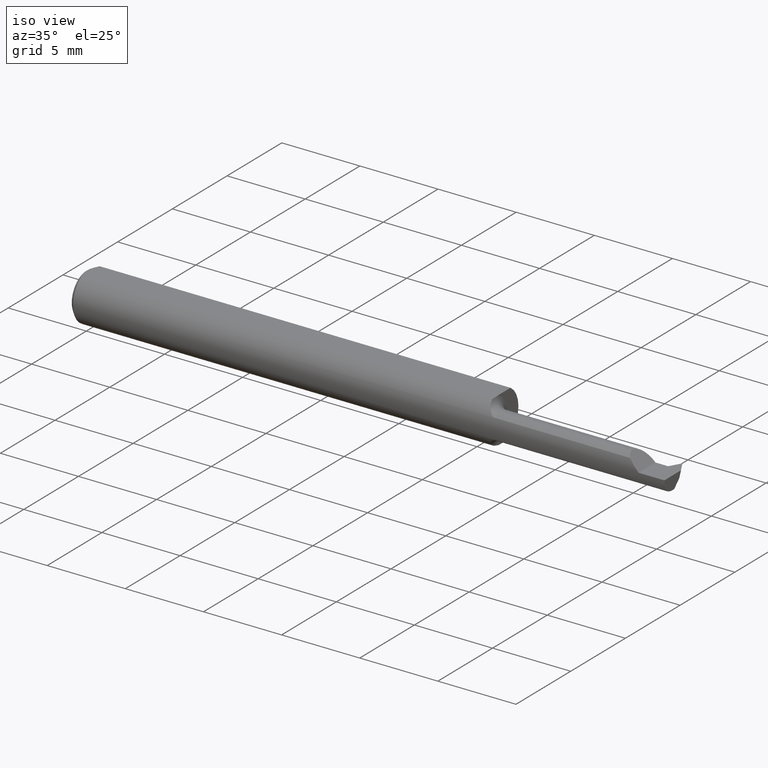
[diagram: clean part render]
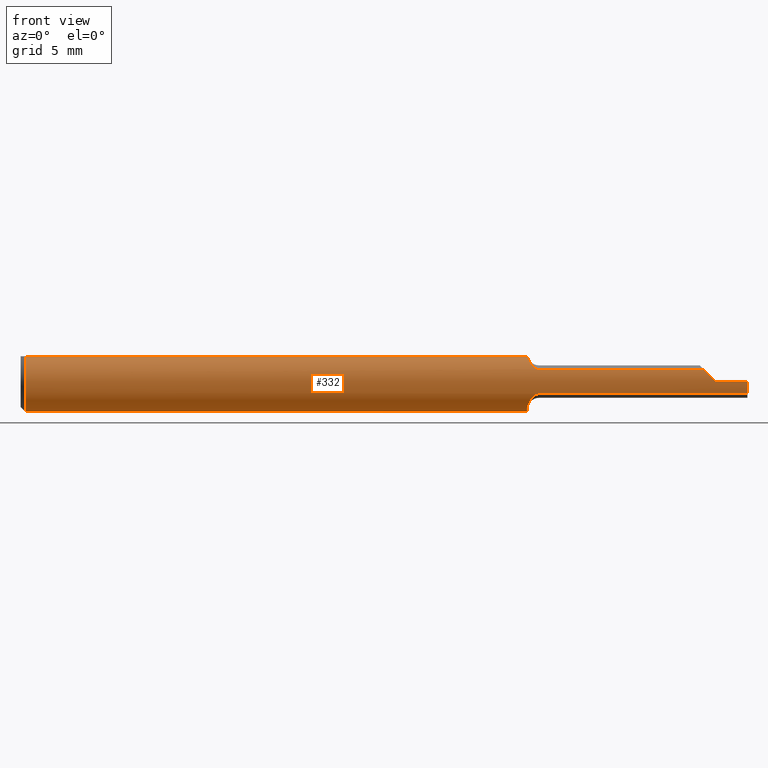
[diagram: tour spotlight — one face highlighted and labeled with its STEP entity id]
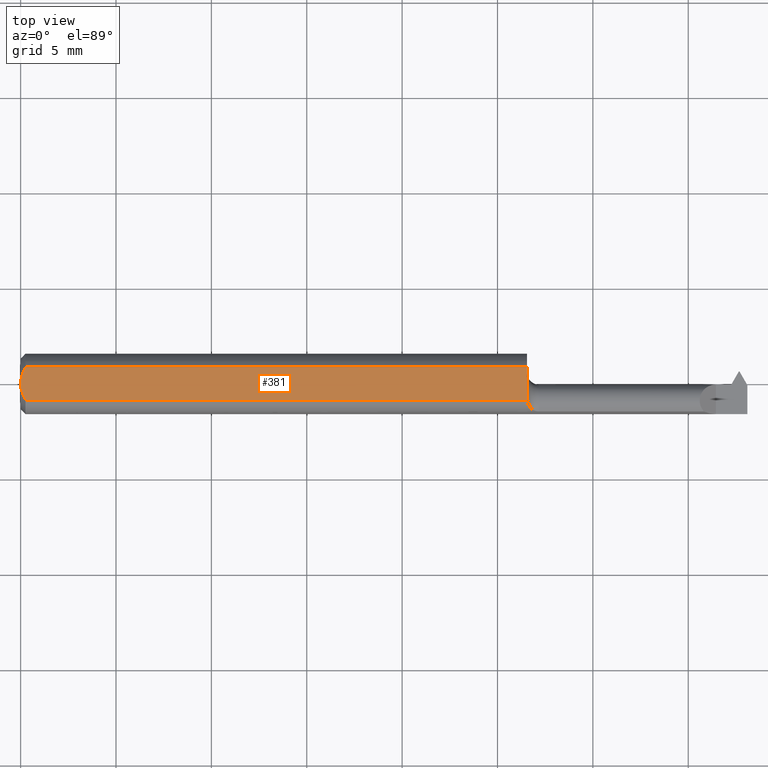
[diagram: tour spotlight — one face highlighted and labeled with its STEP entity id]
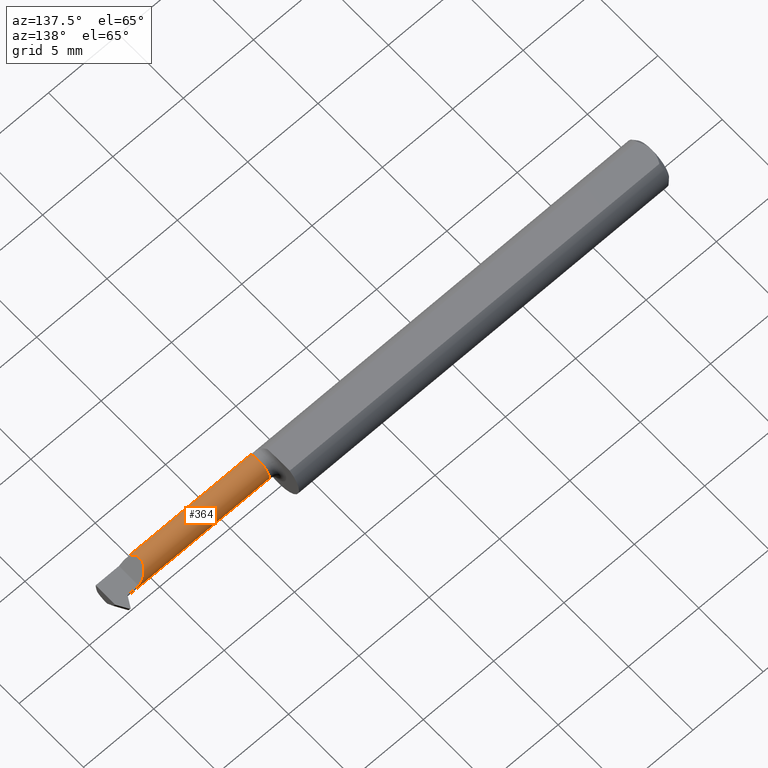
[diagram: tour spotlight — one face highlighted and labeled with its STEP entity id]
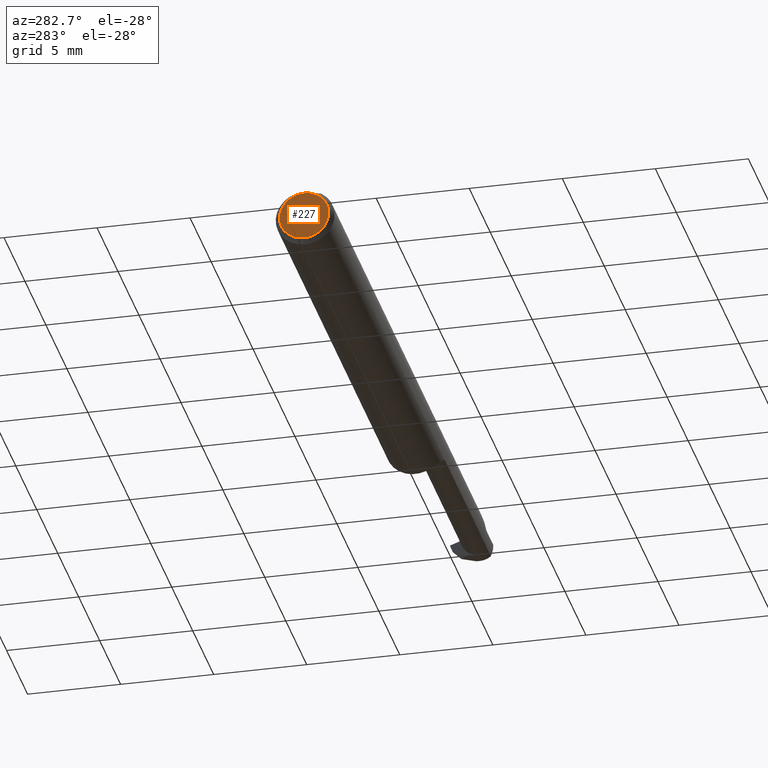
[diagram: tour spotlight — one face highlighted and labeled with its STEP entity id]
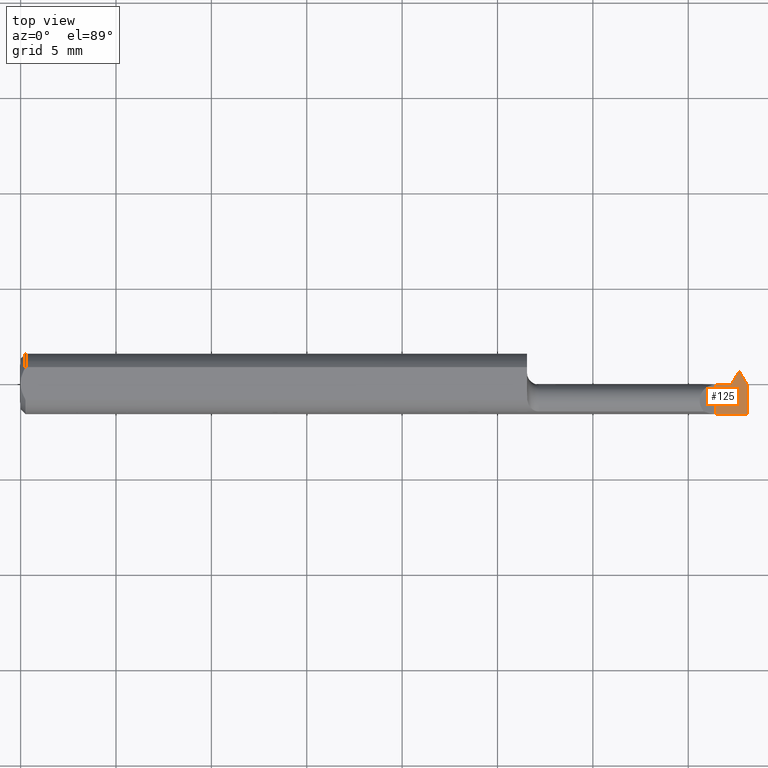
[diagram: tour spotlight — one face highlighted and labeled with its STEP entity id]
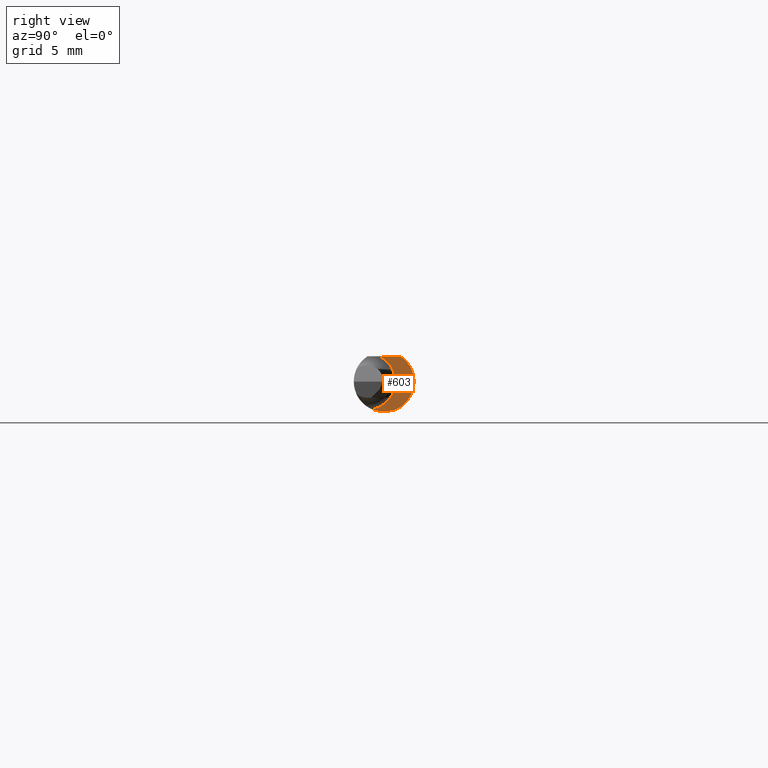
[diagram: tour spotlight — one face highlighted and labeled with its STEP entity id]
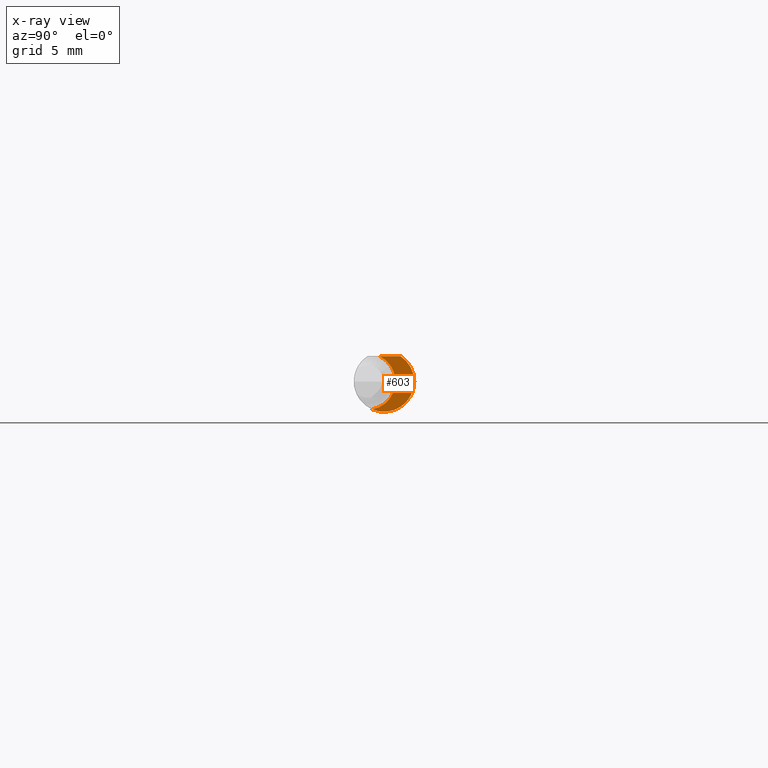
[diagram: x-ray of the same camera — body ghosted, this tour face saturated]
A machine part: a face-by-face anatomy tour. The part has 23 B-rep faces; the first image is the clean iso view, then the 6 largest visible faces are spotlighted one at a time (largest first), each with its STEP entity span.

Face 1 — front view, entity #332. In plain terms, the highlighted cylindrical surface (edge-blend (fillet) strip) has radius 1.5837 mm, axis along (-1, -0, -0).
Definition (entity closure, byte-faithful):
#3 = CARTESIAN_POINT ( 'NONE',  ( 1.070000000000000284, -0.05709892395982781726, 0.02504466774844100324 ) ) ;
#6 = AXIS2_PLACEMENT_3D ( 'NONE', #707, #776, #106 ) ;
#17 = DIRECTION ( 'NONE',  ( 0.000000000000000000, 0.000000000000000000, -1.000000000000000000 ) ) ;
#25 = CARTESIAN_POINT ( 'NONE',  ( 1.045000000000000151, -0.02410035868005742932, -0.05750387127396364845 ) ) ;
#30 = CARTESIAN_POINT ( 'NONE',  ( 1.417879128153533452, -0.06057445067572577585, 0.01712087184646659752 ) ) ;
#36 = CARTESIAN_POINT ( 'NONE',  ( 1.054690406761187527, -0.05189775877450879260, 0.03472056671776155984 ) ) ;
#51 = CARTESIAN_POINT ( 'NONE',  ( 1.267830771365940024, -0.05709892395982781726, -0.02504466774844102059 ) ) ;
#53 = FACE_OUTER_BOUND ( 'NONE', #342, .T. ) ;
#73 = CARTESIAN_POINT ( 'NONE',  ( 1.061164853340209158, -0.05561071833010011040, -0.02822547837609013996 ) ) ;
#89 = CARTESIAN_POINT ( 'NONE',  ( 1.046314111219817100, -0.03711772912555125897, 0.05024721966676181512 ) ) ;
#91 = ORIENTED_EDGE ( 'NONE', *, *, #340, .F. ) ;
#106 = DIRECTION ( 'NONE',  ( 0.000000000000000000, 1.000000000000000000, 0.000000000000000000 ) ) ;
#109 = CARTESIAN_POINT ( 'NONE',  ( 0.000000000000000000, 0.000000000000000000, 0.000000000000000000 ) ) ;
#112 = LINE ( 'NONE', #539, #598 ) ;
#115 = CARTESIAN_POINT ( 'NONE',  ( 1.500000000000000222, -0.05709892395982779645, -0.02504466774844105528 ) ) ;
#117 = VERTEX_POINT ( 'NONE', #133 ) ;
#122 = CARTESIAN_POINT ( 'NONE',  ( 1.067550192911579154, -0.05709892395982780339, -0.02504466774844099977 ) ) ;
#133 = CARTESIAN_POINT ( 'NONE',  ( 1.500000000000000222, -0.06235000000000000264, 0.000000000000000000 ) ) ;
#145 = AXIS2_PLACEMENT_3D ( 'NONE', #109, #546, #242 ) ;
#152 = CARTESIAN_POINT ( 'NONE',  ( 1.409955332251558779, -0.05709892395982780339, 0.02504466774844103447 ) ) ;
#154 = VERTEX_POINT ( 'NONE', #461 ) ;
#156 = CARTESIAN_POINT ( 'NONE',  ( 1.070000000000000284, -0.05709892395982781726, 0.02504466774844100324 ) ) ;
#165 = B_SPLINE_CURVE_WITH_KNOTS ( 'NONE', 3,
 ( #426, #122, #552, #73, #556, #691, #311, #747, #752, #564 ),
 .UNSPECIFIED., .F., .F.,
 ( 4, 2, 2, 2, 4 ),
 ( 1.966152330163128906E-07, 0.0001837255154448747777, 0.0003672544156567332800, 0.0007343122160804505015, 0.001468427816927889065 ),
 .UNSPECIFIED. ) ;
#177 = VERTEX_POINT ( 'NONE', #529 ) ;
#192 = CARTESIAN_POINT ( 'NONE',  ( 0.000000000000000000, -0.03386738844375224849, 0.05234999999999997294 ) ) ;
#194 = VECTOR ( 'NONE', #510, 39.37007874015748143 ) ;
#195 = EDGE_CURVE ( 'NONE', #623, #573, #238, .T. ) ;
#200 = LINE ( 'NONE', #192, #194 ) ;
#207 = CARTESIAN_POINT ( 'NONE',  ( 1.426347495885637029, -0.06235000000000000264, 0.008652504114362861293 ) ) ;
#211 = CIRCLE ( 'NONE', #714, 0.06235000000000000264 ) ;
#215 = CARTESIAN_POINT ( 'NONE',  ( 1.045765915872935548, -0.03386738844375226931, 0.05234999999999997294 ) ) ;
#220 = CARTESIAN_POINT ( 'NONE',  ( 1.062667698010507200, -0.05609078834387073997, 0.02724295609707795551 ) ) ;
#238 = CIRCLE ( 'NONE', #6, 0.06235000000000000264 ) ;
#242 = DIRECTION ( 'NONE',  ( 0.000000000000000000, 0.000000000000000000, 1.000000000000000000 ) ) ;
#256 = VERTEX_POINT ( 'NONE', #588 ) ;
#261 = CARTESIAN_POINT ( 'NONE',  ( 0.01000000000000001582, 0.03386738844375224849, 0.05234999999999997294 ) ) ;
#267 = EDGE_CURVE ( 'NONE', #296, #474, #406, .T. ) ;
#272 = CIRCLE ( 'NONE', #793, 0.06235000000000000264 ) ;
#282 = EDGE_CURVE ( 'NONE', #431, #117, #211, .T. ) ;
#296 = VERTEX_POINT ( 'NONE', #3 ) ;
#299 = DIRECTION ( 'NONE',  ( 0.000000000000000000, 0.000000000000000000, -1.000000000000000000 ) ) ;
#311 = CARTESIAN_POINT ( 'NONE',  ( 1.052310961729282068, -0.04965751065928977748, -0.03796109892517811335 ) ) ;
#312 = DIRECTION ( 'NONE',  ( -1.000000000000000000, -0.000000000000000000, -0.000000000000000000 ) ) ;
#315 = CARTESIAN_POINT ( 'NONE',  ( 1.045765915872935548, -0.03386738844375226931, 0.05234999999999997294 ) ) ;
#327 = CARTESIAN_POINT ( 'NONE',  ( 1.056913828280231060, -0.05360430345633773047, 0.03196179114852444603 ) ) ;
#332 = ADVANCED_FACE ( 'NONE', ( #53 ), #535, .T. ) ;
#340 = EDGE_CURVE ( 'NONE', #573, #654, #112, .T. ) ;
#342 = EDGE_LOOP ( 'NONE', ( #365, #555, #525, #562, #360, #780, #721, #593, #602, #91, #422, #345 ) ) ;
#345 = ORIENTED_EDGE ( 'NONE', *, *, #466, .F. ) ;
#348 = CIRCLE ( 'NONE', #754, 0.06235000000000000264 ) ;
#353 = DIRECTION ( 'NONE',  ( -1.000000000000000000, -0.000000000000000000, -0.000000000000000000 ) ) ;
#357 = DIRECTION ( 'NONE',  ( 1.000000000000000000, 3.044142658522791803E-17, 0.000000000000000000 ) ) ;
#360 = ORIENTED_EDGE ( 'NONE', *, *, #267, .F. ) ;
#365 = ORIENTED_EDGE ( 'NONE', *, *, #368, .F. ) ;
#368 = EDGE_CURVE ( 'NONE', #431, #256, #794, .T. ) ;
#380 = EDGE_CURVE ( 'NONE', #154, #654, #348, .T. ) ;
#384 = CARTESIAN_POINT ( 'NONE',  ( 0.01000000000000001582, 0.000000000000000000, 0.000000000000000000 ) ) ;
#392 = CARTESIAN_POINT ( 'NONE',  ( 1.050984889049478399, -0.04785008456019034656, 0.04011563942656617976 ) ) ;
#398 = CARTESIAN_POINT ( 'NONE',  ( 1.047148210568723536, -0.04007261119486314749, 0.04790923348985386826 ) ) ;
#406 = LINE ( 'NONE', #655, #554 ) ;
#411 = CARTESIAN_POINT ( 'NONE',  ( 0.01000000000000001582, 0.000000000000000000, 0.000000000000000000 ) ) ;
#422 = ORIENTED_EDGE ( 'NONE', *, *, #195, .F. ) ;
#423 =( BOUNDED_CURVE ( )  B_SPLINE_CURVE ( 3, ( #760, #207, #30, #152 ),
 .UNSPECIFIED., .F., .F. ) 
 B_SPLINE_CURVE_WITH_KNOTS ( ( 4, 4 ),
 ( 4.712388980384689674, 5.125738186074483060 ),
 .UNSPECIFIED. ) 
 CURVE ( )  GEOMETRIC_REPRESENTATION_ITEM ( )  RATIONAL_B_SPLINE_CURVE ( ( 1.000000000000000000, 0.9858124784975270671, 0.9858124784975270671, 1.000000000000000000 ) ) 
 REPRESENTATION_ITEM ( '' )  );
#426 = CARTESIAN_POINT ( 'NONE',  ( 1.070000000000000284, -0.05709892395982781033, -0.02504466774844100671 ) ) ;
#431 = VERTEX_POINT ( 'NONE', #115 ) ;
#454 = DIRECTION ( 'NONE',  ( 1.000000000000000000, 0.000000000000000000, 0.000000000000000000 ) ) ;
#461 = CARTESIAN_POINT ( 'NONE',  ( 0.01000000000000001582, 0.000000000000000000, -0.06235000000000000264 ) ) ;
#466 = EDGE_CURVE ( 'NONE', #256, #623, #165, .T. ) ;
#474 = VERTEX_POINT ( 'NONE', #575 ) ;
#477 = DIRECTION ( 'NONE',  ( 1.000000000000000000, 0.000000000000000000, 0.000000000000000000 ) ) ;
#495 = CARTESIAN_POINT ( 'NONE',  ( 1.045000000000000151, 0.03386738844375224849, 0.05234999999999997294 ) ) ;
#510 = DIRECTION ( 'NONE',  ( 1.000000000000000000, 0.000000000000000000, 0.000000000000000000 ) ) ;
#515 = CARTESIAN_POINT ( 'NONE',  ( 0.01000000000000001582, -0.03386738844375224849, 0.05234999999999997294 ) ) ;
#525 = ORIENTED_EDGE ( 'NONE', *, *, #634, .T. ) ;
#529 = CARTESIAN_POINT ( 'NONE',  ( 1.435000000000000053, -0.06235000000000005121, 7.960204194457796709E-18 ) ) ;
#535 = CYLINDRICAL_SURFACE ( 'NONE', #145, 0.06235000000000000264 ) ;
#539 = CARTESIAN_POINT ( 'NONE',  ( 0.000000000000000000, 0.03386738844375224849, 0.05234999999999997294 ) ) ;
#540 = VECTOR ( 'NONE', #312, 39.37007874015748143 ) ;
#544 = CARTESIAN_POINT ( 'NONE',  ( 1.500000000000000222, 0.000000000000000000, 0.000000000000000000 ) ) ;
#546 = DIRECTION ( 'NONE',  ( -1.000000000000000000, -0.000000000000000000, -0.000000000000000000 ) ) ;
#552 = CARTESIAN_POINT ( 'NONE',  ( 1.065216574638838010, -0.05674433226992104534, -0.02587103357018544214 ) ) ;
#554 = VECTOR ( 'NONE', #357, 39.37007874015748143 ) ;
#555 = ORIENTED_EDGE ( 'NONE', *, *, #282, .T. ) ;
#556 = CARTESIAN_POINT ( 'NONE',  ( 1.059395777442046827, -0.05483337303378379990, -0.02973462129328996797 ) ) ;
#562 = ORIENTED_EDGE ( 'NONE', *, *, #652, .T. ) ;
#564 = CARTESIAN_POINT ( 'NONE',  ( 1.045000000000000151, -0.02410035868005742932, -0.05750387127396364845 ) ) ;
#573 = VERTEX_POINT ( 'NONE', #495 ) ;
#575 = CARTESIAN_POINT ( 'NONE',  ( 1.409955332251558779, -0.05709892395982780339, 0.02504466774844103447 ) ) ;
#579 = EDGE_CURVE ( 'NONE', #680, #796, #200, .T. ) ;
#588 = CARTESIAN_POINT ( 'NONE',  ( 1.070000000000000284, -0.05709892395982781033, -0.02504466774844100671 ) ) ;
#593 = ORIENTED_EDGE ( 'NONE', *, *, #724, .T. ) ;
#598 = VECTOR ( 'NONE', #661, 39.37007874015748143 ) ;
#602 = ORIENTED_EDGE ( 'NONE', *, *, #380, .T. ) ;
#604 = DIRECTION ( 'NONE',  ( 0.000000000000000000, 0.000000000000000000, 1.000000000000000000 ) ) ;
#621 = CARTESIAN_POINT ( 'NONE',  ( 2.249639673992787780E-32, -0.06234999999999999570, 1.836970198721030181E-16 ) ) ;
#623 = VERTEX_POINT ( 'NONE', #25 ) ;
#634 = EDGE_CURVE ( 'NONE', #117, #177, #757, .T. ) ;
#640 = CARTESIAN_POINT ( 'NONE',  ( 1.068016429056366512, -0.05709892396012065940, 0.02504466774777359267 ) ) ;
#648 = CARTESIAN_POINT ( 'NONE',  ( 1.061108857476140033, -0.05554585026235775436, 0.02835568292702031132 ) ) ;
#652 = EDGE_CURVE ( 'NONE', #177, #474, #423, .T. ) ;
#654 = VERTEX_POINT ( 'NONE', #261 ) ;
#655 = CARTESIAN_POINT ( 'NONE',  ( 1.267830771365940024, -0.05709892395982781726, 0.02504466774844102059 ) ) ;
#661 = DIRECTION ( 'NONE',  ( -1.000000000000000000, -0.000000000000000000, -0.000000000000000000 ) ) ;
#671 = VECTOR ( 'NONE', #734, 39.37007874015748143 ) ;
#680 = VERTEX_POINT ( 'NONE', #515 ) ;
#687 = EDGE_CURVE ( 'NONE', #796, #296, #693, .T. ) ;
#691 = CARTESIAN_POINT ( 'NONE',  ( 1.054708702735070336, -0.05208664496938542748, -0.03446447334144320251 ) ) ;
#693 = B_SPLINE_CURVE_WITH_KNOTS ( 'NONE', 3,
 ( #215, #89, #398, #706, #392, #36, #327, #648, #220, #710, #640, #156 ),
 .UNSPECIFIED., .F., .F.,
 ( 4, 2, 2, 2, 2, 4 ),
 ( 3.666883588906561326E-07, 0.0002941012593274378419, 0.0005878358302959850543, 0.0008815704012645323752, 0.001028437686748805710, 0.001175304972233079046 ),
 .UNSPECIFIED. ) ;
#706 = CARTESIAN_POINT ( 'NONE',  ( 1.049475650765491430, -0.04543829082259429053, 0.04285406105238277058 ) ) ;
#707 = CARTESIAN_POINT ( 'NONE',  ( 1.045000000000000151, 0.000000000000000000, 0.000000000000000000 ) ) ;
#710 = CARTESIAN_POINT ( 'NONE',  ( 1.066087384637947277, -0.05686401995909784457, 0.02558981101992647417 ) ) ;
#714 = AXIS2_PLACEMENT_3D ( 'NONE', #544, #353, #604 ) ;
#721 = ORIENTED_EDGE ( 'NONE', *, *, #579, .F. ) ;
#724 = EDGE_CURVE ( 'NONE', #680, #154, #272, .T. ) ;
#734 = DIRECTION ( 'NONE',  ( -1.000000000000000000, -3.044142658522791803E-17, -0.000000000000000000 ) ) ;
#747 = CARTESIAN_POINT ( 'NONE',  ( 1.046670310314335550, -0.04091496348352739038, -0.04786493339680070874 ) ) ;
#752 = CARTESIAN_POINT ( 'NONE',  ( 1.044999999999999263, -0.03297194608785028458, -0.05378571397685510957 ) ) ;
#754 = AXIS2_PLACEMENT_3D ( 'NONE', #411, #477, #299 ) ;
#757 = LINE ( 'NONE', #621, #540 ) ;
#760 = CARTESIAN_POINT ( 'NONE',  ( 1.435000000000000053, -0.06235000000000005121, 7.960204194457796709E-18 ) ) ;
#776 = DIRECTION ( 'NONE',  ( 1.000000000000000000, 3.044142658522791803E-17, 0.000000000000000000 ) ) ;
#780 = ORIENTED_EDGE ( 'NONE', *, *, #687, .F. ) ;
#793 = AXIS2_PLACEMENT_3D ( 'NONE', #384, #454, #17 ) ;
#794 = LINE ( 'NONE', #51, #671 ) ;
#796 = VERTEX_POINT ( 'NONE', #315 ) ;

Face 2 — top view, entity #381. In plain terms, the highlighted planar face has unit normal (0, 0, 1).
Definition (entity closure, byte-faithful):
#4 = CARTESIAN_POINT ( 'NONE',  ( 0.01000000000000001582, -0.03386738844375224849, 0.05234999999999997294 ) ) ;
#31 = DIRECTION ( 'NONE',  ( -3.044142658522791803E-17, 1.000000000000000000, 0.000000000000000000 ) ) ;
#38 = ORIENTED_EDGE ( 'NONE', *, *, #526, .F. ) ;
#41 = CARTESIAN_POINT ( 'NONE',  ( 1.045583553616766581, -0.02549123666963590967, 0.05234999999999997988 ) ) ;
#55 = VERTEX_POINT ( 'NONE', #512 ) ;
#61 = B_SPLINE_CURVE_WITH_KNOTS ( 'NONE', 3,
 ( #599, #341, #41, #273, #517, #783 ),
 .UNSPECIFIED., .F., .F.,
 ( 4, 2, 4 ),
 ( 0.007083260706228937387, 0.007400580848369309184, 0.007717900990509680981 ),
 .UNSPECIFIED. ) ;
#107 = VERTEX_POINT ( 'NONE', #387 ) ;
#112 = LINE ( 'NONE', #539, #598 ) ;
#116 = CARTESIAN_POINT ( 'NONE',  ( 0.001055043921633170472, -0.01186408073210962373, 0.05234999999999998682 ) ) ;
#127 = CARTESIAN_POINT ( 'NONE',  ( 0.004671770759546948343, 0.02323517832780106970, 0.05234999999999998682 ) ) ;
#140 = EDGE_CURVE ( 'NONE', #796, #55, #61, .T. ) ;
#167 = ORIENTED_EDGE ( 'NONE', *, *, #251, .T. ) ;
#176 = CARTESIAN_POINT ( 'NONE',  ( 0.000000000000000000, 0.000000000000000000, 0.05234999999999997294 ) ) ;
#180 = CARTESIAN_POINT ( 'NONE',  ( 0.007163450771350545095, -0.02864528976618617440, 0.05234999999999997294 ) ) ;
#185 = CARTESIAN_POINT ( 'NONE',  ( 1.630958352158234037, 0.06235000000000000264, 0.05234999999999997294 ) ) ;
#192 = CARTESIAN_POINT ( 'NONE',  ( 0.000000000000000000, -0.03386738844375224849, 0.05234999999999997294 ) ) ;
#194 = VECTOR ( 'NONE', #510, 39.37007874015748143 ) ;
#200 = LINE ( 'NONE', #192, #194 ) ;
#229 = EDGE_LOOP ( 'NONE', ( #487, #746, #167, #521, #462, #38 ) ) ;
#240 = PLANE ( 'NONE',  #385 ) ;
#251 = EDGE_CURVE ( 'NONE', #55, #573, #344, .T. ) ;
#261 = CARTESIAN_POINT ( 'NONE',  ( 0.01000000000000001582, 0.03386738844375224849, 0.05234999999999997294 ) ) ;
#273 = CARTESIAN_POINT ( 'NONE',  ( 1.045206170615659014, -0.01711611420394893585, 0.05234999999999998682 ) ) ;
#289 = FACE_OUTER_BOUND ( 'NONE', #229, .T. ) ;
#315 = CARTESIAN_POINT ( 'NONE',  ( 1.045765915872935548, -0.03386738844375226931, 0.05234999999999997294 ) ) ;
#328 = CARTESIAN_POINT ( 'NONE',  ( 1.045000000000000151, 0.06234999999999998183, 0.05234999999999997294 ) ) ;
#335 = B_SPLINE_CURVE_WITH_KNOTS ( 'NONE', 3,
 ( #4, #180, #679, #116, #358, #798 ),
 .UNSPECIFIED., .F., .F.,
 ( 4, 2, 4 ),
 ( 0.002189598257423869612, 0.002641492532680535590, 0.003093386807937201569 ),
 .UNSPECIFIED. ) ;
#340 = EDGE_CURVE ( 'NONE', #573, #654, #112, .T. ) ;
#341 = CARTESIAN_POINT ( 'NONE',  ( 1.045745998177346925, -0.02967893643233972256, 0.05234999999999997294 ) ) ;
#344 = LINE ( 'NONE', #328, #628 ) ;
#358 = CARTESIAN_POINT ( 'NONE',  ( -8.345942350761171353E-16, -0.005965286321680269427, 0.05234999999999997294 ) ) ;
#363 = CARTESIAN_POINT ( 'NONE',  ( 0.01000000000000001582, 0.03386738844375224849, 0.05234999999999997294 ) ) ;
#381 = ADVANCED_FACE ( 'NONE', ( #289 ), #240, .T. ) ;
#385 = AXIS2_PLACEMENT_3D ( 'NONE', #185, #676, #416 ) ;
#387 = CARTESIAN_POINT ( 'NONE',  ( 0.000000000000000000, 0.000000000000000000, 0.05234999999999997294 ) ) ;
#416 = DIRECTION ( 'NONE',  ( 1.000000000000000000, 0.000000000000000000, -0.000000000000000000 ) ) ;
#462 = ORIENTED_EDGE ( 'NONE', *, *, #549, .F. ) ;
#478 = CARTESIAN_POINT ( 'NONE',  ( 0.001063697276021587047, 0.01189177144351696164, 0.05234999999999997988 ) ) ;
#487 = ORIENTED_EDGE ( 'NONE', *, *, #579, .T. ) ;
#489 = CARTESIAN_POINT ( 'NONE',  ( 0.007185421074056353927, 0.02868573718286563864, 0.05234999999999997294 ) ) ;
#495 = CARTESIAN_POINT ( 'NONE',  ( 1.045000000000000151, 0.03386738844375224849, 0.05234999999999997294 ) ) ;
#510 = DIRECTION ( 'NONE',  ( 1.000000000000000000, 0.000000000000000000, 0.000000000000000000 ) ) ;
#512 = CARTESIAN_POINT ( 'NONE',  ( 1.045000000000000151, -0.008740088089003460875, 0.05234999999999997294 ) ) ;
#515 = CARTESIAN_POINT ( 'NONE',  ( 0.01000000000000001582, -0.03386738844375224849, 0.05234999999999997294 ) ) ;
#517 = CARTESIAN_POINT ( 'NONE',  ( 1.045000000000000373, -0.01292864522488348759, 0.05234999999999997294 ) ) ;
#521 = ORIENTED_EDGE ( 'NONE', *, *, #340, .T. ) ;
#526 = EDGE_CURVE ( 'NONE', #680, #107, #335, .T. ) ;
#539 = CARTESIAN_POINT ( 'NONE',  ( 0.000000000000000000, 0.03386738844375224849, 0.05234999999999997294 ) ) ;
#549 = EDGE_CURVE ( 'NONE', #107, #654, #772, .T. ) ;
#573 = VERTEX_POINT ( 'NONE', #495 ) ;
#579 = EDGE_CURVE ( 'NONE', #680, #796, #200, .T. ) ;
#598 = VECTOR ( 'NONE', #661, 39.37007874015748143 ) ;
#599 = CARTESIAN_POINT ( 'NONE',  ( 1.045765915872935548, -0.03386738844375226931, 0.05234999999999997294 ) ) ;
#611 = CARTESIAN_POINT ( 'NONE',  ( -8.573957617566337510E-16, 0.005954997531773997300, 0.05234999999999997294 ) ) ;
#628 = VECTOR ( 'NONE', #31, 39.37007874015748143 ) ;
#654 = VERTEX_POINT ( 'NONE', #261 ) ;
#661 = DIRECTION ( 'NONE',  ( -1.000000000000000000, -0.000000000000000000, -0.000000000000000000 ) ) ;
#676 = DIRECTION ( 'NONE',  ( 0.000000000000000000, 0.000000000000000000, 1.000000000000000000 ) ) ;
#679 = CARTESIAN_POINT ( 'NONE',  ( 0.004679365186781183836, -0.02325953974079657954, 0.05234999999999997988 ) ) ;
#680 = VERTEX_POINT ( 'NONE', #515 ) ;
#746 = ORIENTED_EDGE ( 'NONE', *, *, #140, .T. ) ;
#772 = B_SPLINE_CURVE_WITH_KNOTS ( 'NONE', 3,
 ( #176, #611, #478, #127, #489, #363 ),
 .UNSPECIFIED., .F., .F.,
 ( 4, 2, 4 ),
 ( 0.003093386807937201569, 0.003544501666246021275, 0.003995616524554840981 ),
 .UNSPECIFIED. ) ;
#783 = CARTESIAN_POINT ( 'NONE',  ( 1.045000000000000151, -0.008740088089003460875, 0.05234999999999997294 ) ) ;
#796 = VERTEX_POINT ( 'NONE', #315 ) ;
#798 = CARTESIAN_POINT ( 'NONE',  ( 0.000000000000000000, 0.000000000000000000, 0.05234999999999997294 ) ) ;

Face 3 — auxiliary view, entity #364. In plain terms, the highlighted cylindrical surface (edge-blend (fillet) strip) has radius 0.8509 mm, axis along (-1, -0, -0).
Definition (entity closure, byte-faithful):
#2 = EDGE_CURVE ( 'NONE', #110, #638, #405, .T. ) ;
#3 = CARTESIAN_POINT ( 'NONE',  ( 1.070000000000000284, -0.05709892395982781726, 0.02504466774844100324 ) ) ;
#7 = CARTESIAN_POINT ( 'NONE',  ( 1.470988396680375176, -0.03485000000000003373, -0.03350000000000003669 ) ) ;
#11 = CARTESIAN_POINT ( 'NONE',  ( 1.500000000000000222, -0.03485000000000002679, -0.03350000000000006445 ) ) ;
#12 = CARTESIAN_POINT ( 'NONE',  ( 1.468594620871771950, -0.006192510509995012395, -0.01735929078915659715 ) ) ;
#13 = LINE ( 'NONE', #21, #372 ) ;
#15 = CARTESIAN_POINT ( 'NONE',  ( 1.045000000000001039, -0.003789340871990215694, -0.01254932087937749713 ) ) ;
#16 = ORIENTED_EDGE ( 'NONE', *, *, #368, .T. ) ;
#20 = CARTESIAN_POINT ( 'NONE',  ( 1.462222201859867177, -0.003789340872012431864, -0.01254932087943250348 ) ) ;
#21 = CARTESIAN_POINT ( 'NONE',  ( 1.665661542731879941, -0.03485000000000002679, -0.03350000000000006445 ) ) ;
#40 = CARTESIAN_POINT ( 'NONE',  ( 1.468344925588967786, -0.01851099140476010138, -0.02924528676769424032 ) ) ;
#45 = ORIENTED_EDGE ( 'NONE', *, *, #126, .F. ) ;
#48 = EDGE_CURVE ( 'NONE', #110, #608, #523, .T. ) ;
#51 = CARTESIAN_POINT ( 'NONE',  ( 1.267830771365940024, -0.05709892395982781726, -0.02504466774844102059 ) ) ;
#57 = DIRECTION ( 'NONE',  ( 0.000000000000000000, -1.000000000000000000, 0.000000000000000000 ) ) ;
#58 = CARTESIAN_POINT ( 'NONE',  ( 1.045000000000000151, -0.001350000000000045825, 5.572142936120455848E-17 ) ) ;
#59 = EDGE_CURVE ( 'NONE', #638, #686, #537, .T. ) ;
#62 = CARTESIAN_POINT ( 'NONE',  ( 1.401411912992474029, -0.001350000000000062738, 0.03358808700752563547 ) ) ;
#77 = LINE ( 'NONE', #15, #359 ) ;
#81 = CARTESIAN_POINT ( 'NONE',  ( 1.468496351774450703, -0.005444001770956236747, -0.01617124643813261722 ) ) ;
#83 = CARTESIAN_POINT ( 'NONE',  ( 1.435000000000000053, -0.001350000000000033899, 5.572142936120455848E-17 ) ) ;
#84 = EDGE_CURVE ( 'NONE', #281, #264, #189, .T. ) ;
#86 = CARTESIAN_POINT ( 'NONE',  ( 1.070000000000000284, -0.03485000000000004761, 0.000000000000000000 ) ) ;
#108 = CIRCLE ( 'NONE', #764, 0.03349999999999998812 ) ;
#110 = VERTEX_POINT ( 'NONE', #501 ) ;
#115 = CARTESIAN_POINT ( 'NONE',  ( 1.500000000000000222, -0.05709892395982779645, -0.02504466774844105528 ) ) ;
#119 = CYLINDRICAL_SURFACE ( 'NONE', #778, 0.03350000000000000894 ) ;
#120 = ORIENTED_EDGE ( 'NONE', *, *, #504, .T. ) ;
#123 = DIRECTION ( 'NONE',  ( 1.000000000000000000, 3.044142658522791803E-17, 0.000000000000000000 ) ) ;
#126 = EDGE_CURVE ( 'NONE', #608, #281, #77, .T. ) ;
#135 = DIRECTION ( 'NONE',  ( 0.000000000000000000, 1.783855966012109820E-15, 1.000000000000000000 ) ) ;
#149 = ORIENTED_EDGE ( 'NONE', *, *, #48, .F. ) ;
#162 =( BOUNDED_CURVE ( )  B_SPLINE_CURVE ( 3, ( #673, #610, #62, #430 ),
 .UNSPECIFIED., .F., .F. ) 
 B_SPLINE_CURVE_WITH_KNOTS ( ( 4, 4 ),
 ( 5.556833071257592849, 7.853981633974481902 ),
 .UNSPECIFIED. ) 
 CURVE ( )  GEOMETRIC_REPRESENTATION_ITEM ( )  RATIONAL_B_SPLINE_CURVE ( ( 1.000000000000000000, 0.6065255798983338886, 0.6065255798983338886, 1.000000000000000000 ) ) 
 REPRESENTATION_ITEM ( '' )  );
#166 = CARTESIAN_POINT ( 'NONE',  ( 1.464661542731879873, -0.001349999999999978604, 0.000000000000000000 ) ) ;
#189 =( BOUNDED_CURVE ( )  B_SPLINE_CURVE ( 3, ( #20, #320, #436, #685 ),
 .UNSPECIFIED., .F., .F. ) 
 B_SPLINE_CURVE_WITH_KNOTS ( ( 4, 4 ),
 ( 1.186823891356161509, 1.570796326794896780 ),
 .UNSPECIFIED. ) 
 CURVE ( )  GEOMETRIC_REPRESENTATION_ITEM ( )  RATIONAL_B_SPLINE_CURVE ( ( 1.000000000000000000, 0.9877514556317770200, 0.9877514556317770200, 1.000000000000000000 ) ) 
 REPRESENTATION_ITEM ( '' )  );
#190 = EDGE_LOOP ( 'NONE', ( #300, #577, #214, #713, #777, #16, #496, #572, #274, #120, #287, #45, #149, #329 ) ) ;
#201 = DIRECTION ( 'NONE',  ( -1.000000000000000000, -3.044142658522791803E-17, -0.000000000000000000 ) ) ;
#204 = CARTESIAN_POINT ( 'NONE',  ( 1.468069896840982214, -0.003789340871973620462, -0.01254932087944053871 ) ) ;
#208 = DIRECTION ( 'NONE',  ( -1.000000000000000000, -0.000000000000000000, -0.000000000000000000 ) ) ;
#213 = CARTESIAN_POINT ( 'NONE',  ( 1.468701029330982344, -0.006506373125171723004, -0.01785745826204019823 ) ) ;
#214 = ORIENTED_EDGE ( 'NONE', *, *, #672, .F. ) ;
#236 = LINE ( 'NONE', #58, #410 ) ;
#244 = FACE_OUTER_BOUND ( 'NONE', #190, .T. ) ;
#247 = CARTESIAN_POINT ( 'NONE',  ( 1.045000000000000151, -0.03485000000000004761, 0.000000000000000000 ) ) ;
#256 = VERTEX_POINT ( 'NONE', #588 ) ;
#258 = CARTESIAN_POINT ( 'NONE',  ( 1.468701029330982344, -0.006506373125171723004, -0.01785745826204019823 ) ) ;
#264 = VERTEX_POINT ( 'NONE', #166 ) ;
#267 = EDGE_CURVE ( 'NONE', #296, #474, #406, .T. ) ;
#268 = CARTESIAN_POINT ( 'NONE',  ( 1.469375214730119117, -0.01074846833720589229, -0.02326727683910013653 ) ) ;
#269 = VERTEX_POINT ( 'NONE', #7 ) ;
#274 = ORIENTED_EDGE ( 'NONE', *, *, #458, .T. ) ;
#281 = VERTEX_POINT ( 'NONE', #294 ) ;
#287 = ORIENTED_EDGE ( 'NONE', *, *, #84, .F. ) ;
#294 = CARTESIAN_POINT ( 'NONE',  ( 1.462222201859867177, -0.003789340872012431864, -0.01254932087943250348 ) ) ;
#296 = VERTEX_POINT ( 'NONE', #3 ) ;
#300 = ORIENTED_EDGE ( 'NONE', *, *, #59, .T. ) ;
#316 = CARTESIAN_POINT ( 'NONE',  ( 1.468344925588967786, -0.01851099140476010138, -0.02924528676769424032 ) ) ;
#317 = CARTESIAN_POINT ( 'NONE',  ( 1.468069896840982214, -0.003789340871973620462, -0.01254932087944053871 ) ) ;
#320 = CARTESIAN_POINT ( 'NONE',  ( 1.462999742044759799, -0.002173196583885657774, -0.008549223398665895327 ) ) ;
#323 = DIRECTION ( 'NONE',  ( -1.000000000000000000, -3.044142658522791803E-17, -0.000000000000000000 ) ) ;
#329 = ORIENTED_EDGE ( 'NONE', *, *, #2, .T. ) ;
#357 = DIRECTION ( 'NONE',  ( 1.000000000000000000, 3.044142658522791803E-17, 0.000000000000000000 ) ) ;
#359 = VECTOR ( 'NONE', #201, 39.37007874015748143 ) ;
#364 = ADVANCED_FACE ( 'NONE', ( #244 ), #119, .T. ) ;
#368 = EDGE_CURVE ( 'NONE', #431, #256, #794, .T. ) ;
#370 = CARTESIAN_POINT ( 'NONE',  ( 1.468344925588967786, -0.005604713232305744836, -0.01633900859523984908 ) ) ;
#372 = VECTOR ( 'NONE', #438, 39.37007874015748143 ) ;
#405 =( BOUNDED_CURVE ( )  B_SPLINE_CURVE ( 3, ( #258, #12, #694, #370 ),
 .UNSPECIFIED., .F., .T. ) 
 B_SPLINE_CURVE_WITH_KNOTS ( ( 4, 4 ),
 ( 3.364779490191166733, 3.417501371238728325 ),
 .UNSPECIFIED. ) 
 CURVE ( )  GEOMETRIC_REPRESENTATION_ITEM ( )  RATIONAL_B_SPLINE_CURVE ( ( 1.000000000000000000, 0.9997683803513919276, 0.9997683803513919276, 1.000000000000000000 ) ) 
 REPRESENTATION_ITEM ( '' )  );
#406 = LINE ( 'NONE', #655, #554 ) ;
#410 = VECTOR ( 'NONE', #123, 39.37007874015748143 ) ;
#430 = CARTESIAN_POINT ( 'NONE',  ( 1.435000000000000053, -0.001350000000000033899, 5.572142936120455848E-17 ) ) ;
#431 = VERTEX_POINT ( 'NONE', #115 ) ;
#436 = CARTESIAN_POINT ( 'NONE',  ( 1.463822938628645431, -0.001350000000000028694, -0.004314244107103851027 ) ) ;
#438 = DIRECTION ( 'NONE',  ( -1.000000000000000000, -0.000000000000000000, -0.000000000000000000 ) ) ;
#445 = DIRECTION ( 'NONE',  ( 0.000000000000000000, 8.919279830060556988E-16, -1.000000000000000000 ) ) ;
#452 = CARTESIAN_POINT ( 'NONE',  ( 1.468285416211164485, -0.004535921870353787355, -0.01439717369343881948 ) ) ;
#458 = EDGE_CURVE ( 'NONE', #474, #708, #162, .T. ) ;
#460 = CARTESIAN_POINT ( 'NONE',  ( 1.470988396680375176, -0.03485000000000003373, -0.03350000000000003669 ) ) ;
#474 = VERTEX_POINT ( 'NONE', #575 ) ;
#484 = EDGE_CURVE ( 'NONE', #296, #256, #108, .T. ) ;
#490 =( BOUNDED_CURVE ( )  B_SPLINE_CURVE ( 3, ( #316, #559, #625, #268 ),
 .UNSPECIFIED., .F., .F. ) 
 B_SPLINE_CURVE_WITH_KNOTS ( ( 4, 4 ),
 ( 2.865683935940858795, 3.159202735202320422 ),
 .UNSPECIFIED. ) 
 CURVE ( )  GEOMETRIC_REPRESENTATION_ITEM ( )  RATIONAL_B_SPLINE_CURVE ( ( 1.000000000000000000, 0.9928334363834034892, 0.9928334363834034892, 1.000000000000000000 ) ) 
 REPRESENTATION_ITEM ( '' )  );
#496 = ORIENTED_EDGE ( 'NONE', *, *, #484, .F. ) ;
#499 = CARTESIAN_POINT ( 'NONE',  ( 1.468344925588967786, -0.005604713232305744836, -0.01633900859523984908 ) ) ;
#501 = CARTESIAN_POINT ( 'NONE',  ( 1.468701029330982344, -0.006506373125171723004, -0.01785745826204019823 ) ) ;
#504 = EDGE_CURVE ( 'NONE', #708, #264, #236, .T. ) ;
#513 = AXIS2_PLACEMENT_3D ( 'NONE', #567, #208, #445 ) ;
#523 =( BOUNDED_CURVE ( )  B_SPLINE_CURVE ( 3, ( #213, #81, #452, #317 ),
 .UNSPECIFIED., .F., .T. ) 
 B_SPLINE_CURVE_WITH_KNOTS ( ( 4, 4 ),
 ( 4.342163871307993084, 4.520402762665542085 ),
 .UNSPECIFIED. ) 
 CURVE ( )  GEOMETRIC_REPRESENTATION_ITEM ( )  RATIONAL_B_SPLINE_CURVE ( ( 1.000000000000000000, 0.9973543265518625134, 0.9973543265518625134, 1.000000000000000000 ) ) 
 REPRESENTATION_ITEM ( '' )  );
#537 = CIRCLE ( 'NONE', #513, 0.03350000000000000894 ) ;
#554 = VECTOR ( 'NONE', #357, 39.37007874015748143 ) ;
#559 = CARTESIAN_POINT ( 'NONE',  ( 1.469076601151433348, -0.01563932465019416199, -0.02764091926197547247 ) ) ;
#567 = CARTESIAN_POINT ( 'NONE',  ( 1.468344925588967786, -0.03485000000000003373, 0.000000000000000000 ) ) ;
#572 = ORIENTED_EDGE ( 'NONE', *, *, #267, .T. ) ;
#574 = CARTESIAN_POINT ( 'NONE',  ( 1.500000000000000222, -0.03485000000000003373, 0.000000000000000000 ) ) ;
#575 = CARTESIAN_POINT ( 'NONE',  ( 1.409955332251558779, -0.05709892395982780339, 0.02504466774844103447 ) ) ;
#577 = ORIENTED_EDGE ( 'NONE', *, *, #633, .T. ) ;
#581 = CARTESIAN_POINT ( 'NONE',  ( 1.470226830106422078, -0.01714980122318110131, -0.02989813133497962183 ) ) ;
#583 = AXIS2_PLACEMENT_3D ( 'NONE', #574, #690, #135 ) ;
#588 = CARTESIAN_POINT ( 'NONE',  ( 1.070000000000000284, -0.05709892395982781033, -0.02504466774844100671 ) ) ;
#591 = CARTESIAN_POINT ( 'NONE',  ( 1.469375214730119117, -0.01074846833720589229, -0.02326727683910013653 ) ) ;
#597 =( BOUNDED_CURVE ( )  B_SPLINE_CURVE ( 3, ( #460, #767, #581, #591 ),
 .UNSPECIFIED., .F., .T. ) 
 B_SPLINE_CURVE_WITH_KNOTS ( ( 4, 4 ),
 ( 3.333578871309169411, 4.136587116319145885 ),
 .UNSPECIFIED. ) 
 CURVE ( )  GEOMETRIC_REPRESENTATION_ITEM ( )  RATIONAL_B_SPLINE_CURVE ( ( 1.000000000000000000, 0.9469828129562373187, 0.9469828129562373187, 1.000000000000000000 ) ) 
 REPRESENTATION_ITEM ( '' )  );
#605 = VERTEX_POINT ( 'NONE', #11 ) ;
#608 = VERTEX_POINT ( 'NONE', #204 ) ;
#610 = CARTESIAN_POINT ( 'NONE',  ( 1.387647905571363971, -0.03198840218641867822, 0.04735209442863554108 ) ) ;
#614 = DIRECTION ( 'NONE',  ( -1.000000000000000000, -3.044142658522791803E-17, -0.000000000000000000 ) ) ;
#625 = CARTESIAN_POINT ( 'NONE',  ( 1.469422509841785240, -0.01303313956983440797, -0.02563386560808492490 ) ) ;
#633 = EDGE_CURVE ( 'NONE', #686, #656, #490, .T. ) ;
#636 = CARTESIAN_POINT ( 'NONE',  ( 1.469375214730119117, -0.01074846833720589229, -0.02326727683910013653 ) ) ;
#638 = VERTEX_POINT ( 'NONE', #499 ) ;
#655 = CARTESIAN_POINT ( 'NONE',  ( 1.267830771365940024, -0.05709892395982781726, 0.02504466774844102059 ) ) ;
#656 = VERTEX_POINT ( 'NONE', #636 ) ;
#671 = VECTOR ( 'NONE', #734, 39.37007874015748143 ) ;
#672 = EDGE_CURVE ( 'NONE', #269, #656, #597, .T. ) ;
#673 = CARTESIAN_POINT ( 'NONE',  ( 1.409955332251558779, -0.05709892395982780339, 0.02504466774844103447 ) ) ;
#677 = DIRECTION ( 'NONE',  ( 0.000000000000000000, -1.000000000000000000, 0.000000000000000000 ) ) ;
#685 = CARTESIAN_POINT ( 'NONE',  ( 1.464661542731879873, -0.001349999999999978604, 0.000000000000000000 ) ) ;
#686 = VERTEX_POINT ( 'NONE', #40 ) ;
#690 = DIRECTION ( 'NONE',  ( 1.000000000000000000, 0.000000000000000000, 0.000000000000000000 ) ) ;
#694 = CARTESIAN_POINT ( 'NONE',  ( 1.468475892124523341, -0.005891887582196106594, -0.01685302363880367832 ) ) ;
#708 = VERTEX_POINT ( 'NONE', #83 ) ;
#713 = ORIENTED_EDGE ( 'NONE', *, *, #792, .F. ) ;
#725 = EDGE_CURVE ( 'NONE', #431, #605, #730, .T. ) ;
#730 = CIRCLE ( 'NONE', #583, 0.03350000000000004363 ) ;
#734 = DIRECTION ( 'NONE',  ( -1.000000000000000000, -3.044142658522791803E-17, -0.000000000000000000 ) ) ;
#764 = AXIS2_PLACEMENT_3D ( 'NONE', #86, #323, #677 ) ;
#767 = CARTESIAN_POINT ( 'NONE',  ( 1.470794662288163579, -0.02563342286623761582, -0.03350000000000000894 ) ) ;
#777 = ORIENTED_EDGE ( 'NONE', *, *, #725, .F. ) ;
#778 = AXIS2_PLACEMENT_3D ( 'NONE', #247, #614, #57 ) ;
#792 = EDGE_CURVE ( 'NONE', #605, #269, #13, .T. ) ;
#794 = LINE ( 'NONE', #51, #671 ) ;

Face 4 — auxiliary view, entity #227. In plain terms, the highlighted planar face has unit normal (1, 0, 0).
Definition (entity closure, byte-faithful):
#107 = VERTEX_POINT ( 'NONE', #387 ) ;
#158 = CIRCLE ( 'NONE', #569, 0.05235000000000005621 ) ;
#171 = AXIS2_PLACEMENT_3D ( 'NONE', #641, #336, #595 ) ;
#191 = DIRECTION ( 'NONE',  ( -1.000000000000000000, -0.000000000000000000, -0.000000000000000000 ) ) ;
#210 = VERTEX_POINT ( 'NONE', #347 ) ;
#223 = PLANE ( 'NONE',  #171 ) ;
#227 = ADVANCED_FACE ( 'NONE', ( #280 ), #223, .F. ) ;
#280 = FACE_OUTER_BOUND ( 'NONE', #383, .T. ) ;
#318 = CIRCLE ( 'NONE', #428, 0.05235000000000005621 ) ;
#336 = DIRECTION ( 'NONE',  ( 1.000000000000000000, 0.000000000000000000, 0.000000000000000000 ) ) ;
#347 = CARTESIAN_POINT ( 'NONE',  ( 0.000000000000000000, 0.000000000000000000, -0.05235000000000005621 ) ) ;
#383 = EDGE_LOOP ( 'NONE', ( #508, #479 ) ) ;
#386 = CARTESIAN_POINT ( 'NONE',  ( 0.000000000000000000, 0.000000000000000000, 0.000000000000000000 ) ) ;
#387 = CARTESIAN_POINT ( 'NONE',  ( 0.000000000000000000, 0.000000000000000000, 0.05234999999999997294 ) ) ;
#397 = EDGE_CURVE ( 'NONE', #210, #107, #318, .T. ) ;
#428 = AXIS2_PLACEMENT_3D ( 'NONE', #731, #481, #723 ) ;
#439 = DIRECTION ( 'NONE',  ( 0.000000000000000000, 0.000000000000000000, -1.000000000000000000 ) ) ;
#469 = EDGE_CURVE ( 'NONE', #107, #210, #158, .T. ) ;
#479 = ORIENTED_EDGE ( 'NONE', *, *, #397, .T. ) ;
#481 = DIRECTION ( 'NONE',  ( -1.000000000000000000, -0.000000000000000000, -0.000000000000000000 ) ) ;
#508 = ORIENTED_EDGE ( 'NONE', *, *, #469, .T. ) ;
#569 = AXIS2_PLACEMENT_3D ( 'NONE', #386, #191, #439 ) ;
#595 = DIRECTION ( 'NONE',  ( 0.000000000000000000, 0.000000000000000000, -1.000000000000000000 ) ) ;
#641 = CARTESIAN_POINT ( 'NONE',  ( 0.000000000000000000, 0.000000000000000000, 0.000000000000000000 ) ) ;
#723 = DIRECTION ( 'NONE',  ( 0.000000000000000000, 0.000000000000000000, -1.000000000000000000 ) ) ;
#731 = CARTESIAN_POINT ( 'NONE',  ( 0.000000000000000000, 0.000000000000000000, 0.000000000000000000 ) ) ;

Face 5 — top view, entity #125. In plain terms, the highlighted planar face has unit normal (-0, 0, -1).
Definition (entity closure, byte-faithful):
#22 = CARTESIAN_POINT ( 'NONE',  ( 1.466661542731880319, -0.001350000000000033899, 0.000000000000000000 ) ) ;
#52 = ORIENTED_EDGE ( 'NONE', *, *, #736, .F. ) ;
#56 = VECTOR ( 'NONE', #170, 39.37007874015748143 ) ;
#58 = CARTESIAN_POINT ( 'NONE',  ( 1.045000000000000151, -0.001350000000000045825, 5.572142936120455848E-17 ) ) ;
#64 = ORIENTED_EDGE ( 'NONE', *, *, #504, .F. ) ;
#71 = AXIS2_PLACEMENT_3D ( 'NONE', #375, #576, #622 ) ;
#83 = CARTESIAN_POINT ( 'NONE',  ( 1.435000000000000053, -0.001350000000000033899, 5.572142936120455848E-17 ) ) ;
#87 = FACE_OUTER_BOUND ( 'NONE', #718, .T. ) ;
#94 = LINE ( 'NONE', #393, #257 ) ;
#97 = VERTEX_POINT ( 'NONE', #22 ) ;
#99 = CARTESIAN_POINT ( 'NONE',  ( 1.435000000000000053, -0.2500000000000000555, 7.960204194457796709E-18 ) ) ;
#117 = VERTEX_POINT ( 'NONE', #133 ) ;
#123 = DIRECTION ( 'NONE',  ( 1.000000000000000000, 3.044142658522791803E-17, 0.000000000000000000 ) ) ;
#125 = ADVANCED_FACE ( 'NONE', ( #87 ), #325, .F. ) ;
#132 = EDGE_CURVE ( 'NONE', #177, #708, #755, .T. ) ;
#133 = CARTESIAN_POINT ( 'NONE',  ( 1.500000000000000222, -0.06235000000000000264, 0.000000000000000000 ) ) ;
#166 = CARTESIAN_POINT ( 'NONE',  ( 1.464661542731879873, -0.001349999999999978604, 0.000000000000000000 ) ) ;
#170 = DIRECTION ( 'NONE',  ( 0.000000000000000000, -1.000000000000000000, 0.000000000000000000 ) ) ;
#175 = CARTESIAN_POINT ( 'NONE',  ( 1.500000000000000222, 0.000000000000000000, 0.000000000000000000 ) ) ;
#177 = VERTEX_POINT ( 'NONE', #529 ) ;
#202 = EDGE_CURVE ( 'NONE', #443, #727, #94, .T. ) ;
#206 = LINE ( 'NONE', #447, #765 ) ;
#235 = LINE ( 'NONE', #175, #56 ) ;
#236 = LINE ( 'NONE', #58, #410 ) ;
#257 = VECTOR ( 'NONE', #649, 39.37007874015748854 ) ;
#260 = DIRECTION ( 'NONE',  ( 1.000000000000000000, 3.044142658522791803E-17, 0.000000000000000000 ) ) ;
#264 = VERTEX_POINT ( 'NONE', #166 ) ;
#270 = VECTOR ( 'NONE', #524, 39.37007874015748143 ) ;
#303 = CARTESIAN_POINT ( 'NONE',  ( 1.483749999999999902, 0.02564999999999998531, 0.000000000000000000 ) ) ;
#312 = DIRECTION ( 'NONE',  ( -1.000000000000000000, -0.000000000000000000, -0.000000000000000000 ) ) ;
#325 = PLANE ( 'NONE',  #71 ) ;
#375 = CARTESIAN_POINT ( 'NONE',  ( 1.500000000000000222, -0.2500000000000000555, 0.000000000000000000 ) ) ;
#390 = ORIENTED_EDGE ( 'NONE', *, *, #774, .F. ) ;
#391 = EDGE_CURVE ( 'NONE', #727, #117, #235, .T. ) ;
#393 = CARTESIAN_POINT ( 'NONE',  ( 1.483749999999999902, 0.02564999999999998531, 0.000000000000000000 ) ) ;
#395 = VECTOR ( 'NONE', #260, 39.37007874015748143 ) ;
#407 = ORIENTED_EDGE ( 'NONE', *, *, #132, .F. ) ;
#410 = VECTOR ( 'NONE', #123, 39.37007874015748143 ) ;
#443 = VERTEX_POINT ( 'NONE', #303 ) ;
#447 = CARTESIAN_POINT ( 'NONE',  ( 1.482250000000000068, 0.02564999999999998531, 0.000000000000000000 ) ) ;
#449 = DIRECTION ( 'NONE',  ( 0.4999999999999961142, 0.8660254037844408170, -0.000000000000000000 ) ) ;
#486 = LINE ( 'NONE', #553, #619 ) ;
#503 = VERTEX_POINT ( 'NONE', #795 ) ;
#504 = EDGE_CURVE ( 'NONE', #708, #264, #236, .T. ) ;
#518 = ORIENTED_EDGE ( 'NONE', *, *, #391, .F. ) ;
#524 = DIRECTION ( 'NONE',  ( -0.000000000000000000, 1.000000000000000000, -0.000000000000000000 ) ) ;
#529 = CARTESIAN_POINT ( 'NONE',  ( 1.435000000000000053, -0.06235000000000005121, 7.960204194457796709E-18 ) ) ;
#534 = EDGE_CURVE ( 'NONE', #264, #97, #486, .T. ) ;
#540 = VECTOR ( 'NONE', #312, 39.37007874015748143 ) ;
#553 = CARTESIAN_POINT ( 'NONE',  ( 1.466661542731880319, -0.001350000000000033899, 0.000000000000000000 ) ) ;
#576 = DIRECTION ( 'NONE',  ( -1.224646799147353700E-16, 0.000000000000000000, -1.000000000000000000 ) ) ;
#619 = VECTOR ( 'NONE', #738, 39.37007874015748143 ) ;
#621 = CARTESIAN_POINT ( 'NONE',  ( 2.249639673992787780E-32, -0.06234999999999999570, 1.836970198721030181E-16 ) ) ;
#622 = DIRECTION ( 'NONE',  ( -1.000000000000000000, 0.000000000000000000, 1.224646799147353700E-16 ) ) ;
#629 = CARTESIAN_POINT ( 'NONE',  ( 1.045000000000000151, 0.02564999999999997143, 5.572142936120455848E-17 ) ) ;
#634 = EDGE_CURVE ( 'NONE', #117, #177, #757, .T. ) ;
#649 = DIRECTION ( 'NONE',  ( 0.4999999999999949485, -0.8660254037844414832, 0.000000000000000000 ) ) ;
#667 = ORIENTED_EDGE ( 'NONE', *, *, #634, .F. ) ;
#701 = ORIENTED_EDGE ( 'NONE', *, *, #202, .F. ) ;
#702 = LINE ( 'NONE', #629, #395 ) ;
#705 = CARTESIAN_POINT ( 'NONE',  ( 1.500000000000000222, -0.002495825622994883239, 0.000000000000000000 ) ) ;
#708 = VERTEX_POINT ( 'NONE', #83 ) ;
#718 = EDGE_LOOP ( 'NONE', ( #52, #390, #756, #64, #407, #667, #518, #701 ) ) ;
#727 = VERTEX_POINT ( 'NONE', #705 ) ;
#736 = EDGE_CURVE ( 'NONE', #503, #443, #702, .T. ) ;
#738 = DIRECTION ( 'NONE',  ( 1.000000000000000000, -2.761194017033129746E-14, -0.000000000000000000 ) ) ;
#755 = LINE ( 'NONE', #99, #270 ) ;
#756 = ORIENTED_EDGE ( 'NONE', *, *, #534, .F. ) ;
#757 = LINE ( 'NONE', #621, #540 ) ;
#765 = VECTOR ( 'NONE', #449, 39.37007874015748854 ) ;
#774 = EDGE_CURVE ( 'NONE', #97, #503, #206, .T. ) ;
#795 = CARTESIAN_POINT ( 'NONE',  ( 1.482250000000000068, 0.02564999999999998531, 0.000000000000000000 ) ) ;

Face 6 — right view, entity #603. An x-ray twin of the same camera follows (body ghosted, this face saturated) — the face is partly hidden behind the body. In plain terms, the highlighted planar face has unit normal (1, 0, 0).
Definition (entity closure, byte-faithful):
#6 = AXIS2_PLACEMENT_3D ( 'NONE', #707, #776, #106 ) ;
#9 = ORIENTED_EDGE ( 'NONE', *, *, #195, .T. ) ;
#14 = DIRECTION ( 'NONE',  ( -3.044142658522791803E-17, 1.000000000000000000, 0.000000000000000000 ) ) ;
#25 = CARTESIAN_POINT ( 'NONE',  ( 1.045000000000000151, -0.02410035868005742932, -0.05750387127396364845 ) ) ;
#31 = DIRECTION ( 'NONE',  ( -3.044142658522791803E-17, 1.000000000000000000, 0.000000000000000000 ) ) ;
#46 = AXIS2_PLACEMENT_3D ( 'NONE', #136, #199, #630 ) ;
#55 = VERTEX_POINT ( 'NONE', #512 ) ;
#106 = DIRECTION ( 'NONE',  ( 0.000000000000000000, 1.000000000000000000, 0.000000000000000000 ) ) ;
#136 = CARTESIAN_POINT ( 'NONE',  ( 1.045000000000000151, -0.03485000000000004761, 0.000000000000000000 ) ) ;
#141 = FACE_OUTER_BOUND ( 'NONE', #225, .T. ) ;
#195 = EDGE_CURVE ( 'NONE', #623, #573, #238, .T. ) ;
#199 = DIRECTION ( 'NONE',  ( -1.000000000000000000, -3.044142658522791803E-17, -0.000000000000000000 ) ) ;
#225 = EDGE_LOOP ( 'NONE', ( #9, #612, #662 ) ) ;
#238 = CIRCLE ( 'NONE', #6, 0.06235000000000000264 ) ;
#246 = CIRCLE ( 'NONE', #46, 0.05849999999999999645 ) ;
#251 = EDGE_CURVE ( 'NONE', #55, #573, #344, .T. ) ;
#324 = DIRECTION ( 'NONE',  ( 1.000000000000000000, 3.044142658522791803E-17, 0.000000000000000000 ) ) ;
#328 = CARTESIAN_POINT ( 'NONE',  ( 1.045000000000000151, 0.06234999999999998183, 0.05234999999999997294 ) ) ;
#344 = LINE ( 'NONE', #328, #628 ) ;
#440 = CARTESIAN_POINT ( 'NONE',  ( 1.045000000000000151, 0.06234999999999994019, 0.000000000000000000 ) ) ;
#451 = PLANE ( 'NONE',  #642 ) ;
#480 = EDGE_CURVE ( 'NONE', #55, #623, #246, .T. ) ;
#495 = CARTESIAN_POINT ( 'NONE',  ( 1.045000000000000151, 0.03386738844375224849, 0.05234999999999997294 ) ) ;
#512 = CARTESIAN_POINT ( 'NONE',  ( 1.045000000000000151, -0.008740088089003460875, 0.05234999999999997294 ) ) ;
#573 = VERTEX_POINT ( 'NONE', #495 ) ;
#603 = ADVANCED_FACE ( 'NONE', ( #141 ), #451, .T. ) ;
#612 = ORIENTED_EDGE ( 'NONE', *, *, #251, .F. ) ;
#623 = VERTEX_POINT ( 'NONE', #25 ) ;
#628 = VECTOR ( 'NONE', #31, 39.37007874015748143 ) ;
#630 = DIRECTION ( 'NONE',  ( 0.000000000000000000, -1.000000000000000000, 0.000000000000000000 ) ) ;
#642 = AXIS2_PLACEMENT_3D ( 'NONE', #440, #324, #14 ) ;
#662 = ORIENTED_EDGE ( 'NONE', *, *, #480, .T. ) ;
#707 = CARTESIAN_POINT ( 'NONE',  ( 1.045000000000000151, 0.000000000000000000, 0.000000000000000000 ) ) ;
#776 = DIRECTION ( 'NONE',  ( 1.000000000000000000, 3.044142658522791803E-17, 0.000000000000000000 ) ) ;